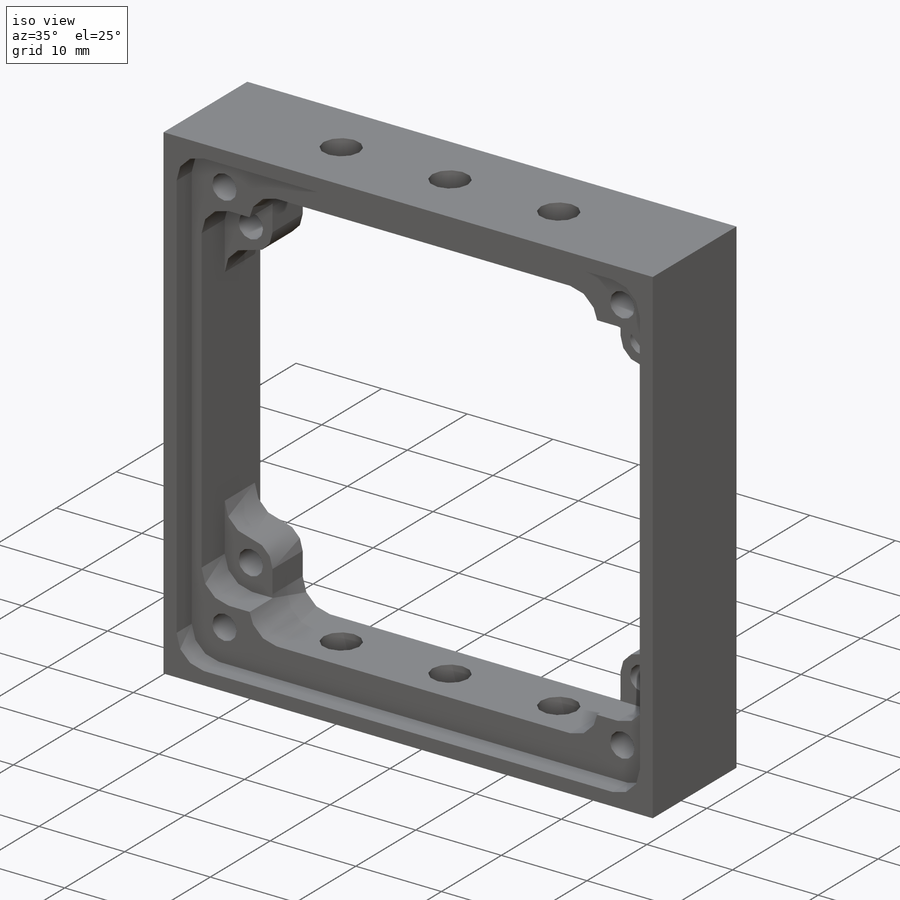
[diagram: iso view]
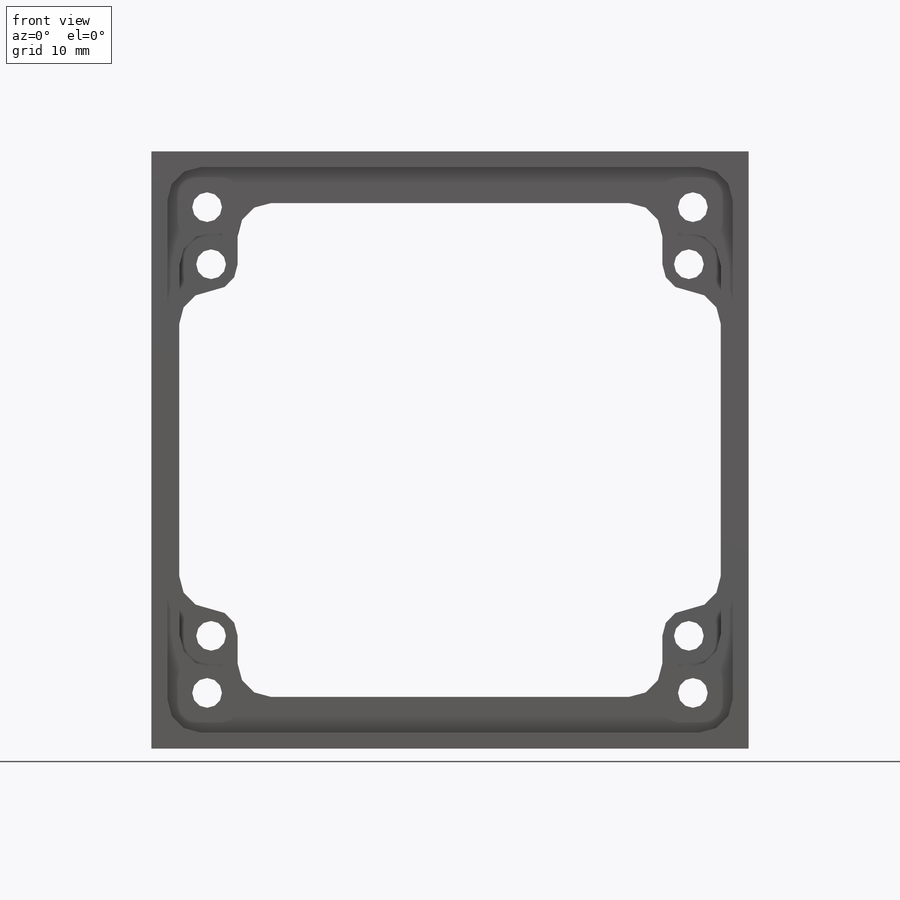
[diagram: front view]
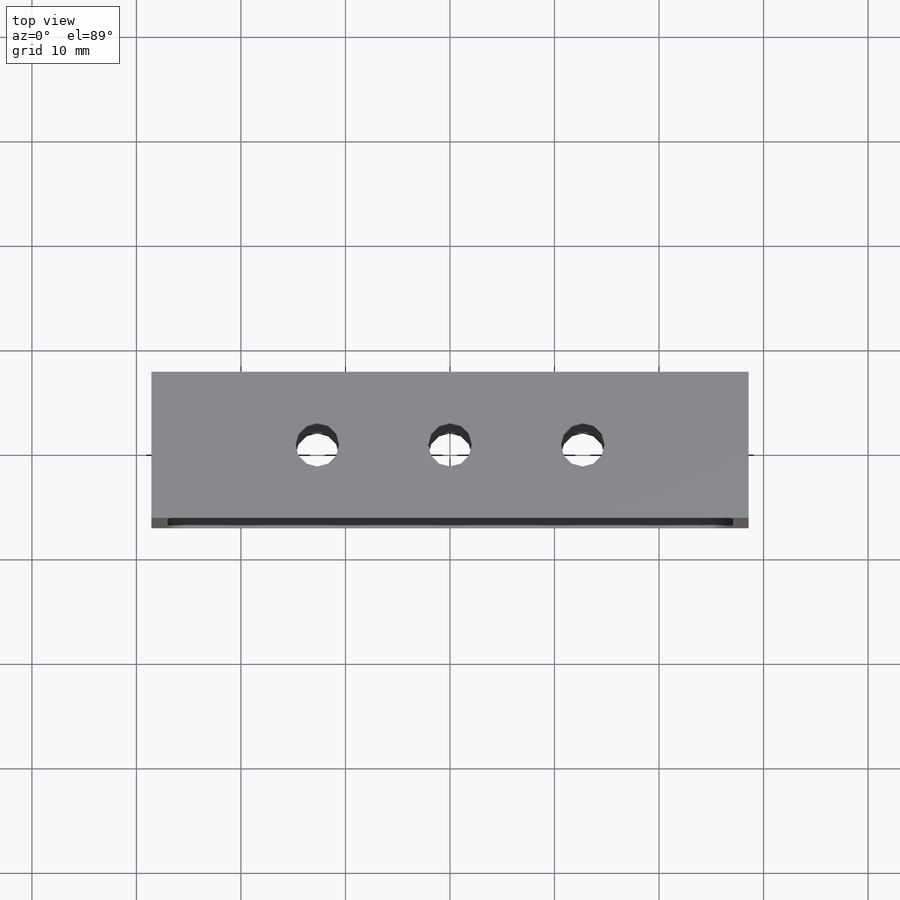
[diagram: top view]
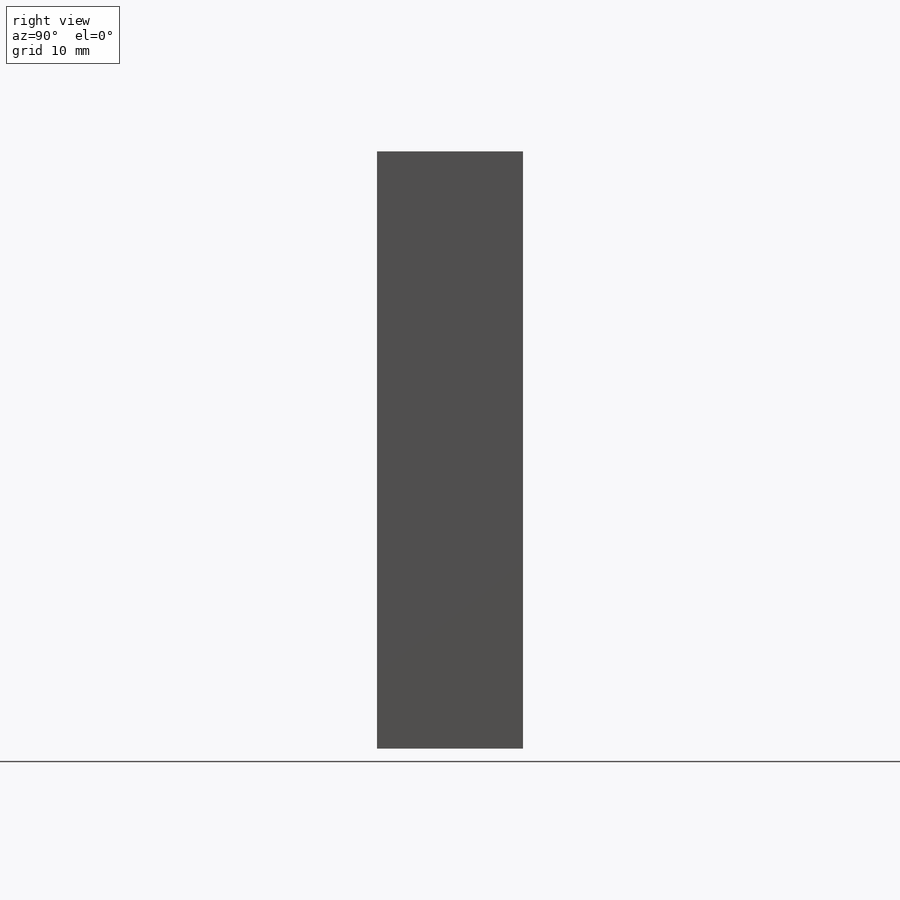
[diagram: right view]
SOLIDWORKS PART (.sldprt)
format: sldprt  version: not decoded by parser v0  size: 633,344 bytes
history: native  units: mm
features: sketch x9, hole x3, cut_extrude x2, material x1, extrude x1, mirror x1 + 1 further entry (+11 scaffold rows collapsed)
feature tree (29):
  scaffold x11  (default folders/planes/origin — collapsed)
  material  "6061-T6 Al"
  "Origin"  ID=392984584
  sketch  "Sketch1 w/mock PCB"  dims[c1.D5=3.048mm c1.D6=3.048mm c1.D7=~1.947748mm c2.D6=3.048mm c2.D7=~2.392707mm c2.D5=2.8448mm c3.D6=3.048mm c3.D7=3.048mm c3.D8=1.5875mm c3.D9=4.7625mm c3.D10=2.54mm c3.D12=3.048mm c3.D13=6.604mm c3.D16=1.5875mm c3.D19=~2.38125mm c4.D9=3.175mm c4.D19=3.048mm c4.D22=2.54mm c4.D23=5.4102mm c4.D14=2.54mm c4.D1=~102.901114mm c4.D2=~79.998856mm c5.D1=46.228mm c5.D2=57.15mm c5.D3=~35.706034mm c5.D4=~31.234425mm c6.D3=40.64mm c6.D4=40.64mm c6.D6=3.81mm c6.D7=6.096mm c7.D6=3.81mm c7.D7=3.048mm c7.D5=3.81mm c8.D7=~49.253342mm c8.D8=~37.691316mm c9.D7=50.8mm c9.D8=40.64mm c9.D6=33.02mm c10.D7=35.56mm c10.D1=50.8mm c10.D4=45.72mm c10.D8=~4.213439mm c11.D8=45.0deg c11.D10=0.254mm c11.D12=6.096mm c11.D14=6.223mm c11.D15=1.778mm c11.D16=1.524mm c11.D17=1.524mm c11.D18=57.15mm c11.D19=~0.697452mm c11.D20=~41.386999mm c12.D19=~0.697452mm c12.D8=~34.56784mm c13.D8=45.0deg c13.D20=~36.155415mm c13.D21=2.159mm c13.D22=~4.15925mm c14.D21=2.159mm c14.D15=1.143mm c14.D12=3.556mm c14.D19=3.556mm c14.D20=46.482mm c15.D21=46.482mm c15.D12=3.81mm c15.D19=3.81mm c15.D24=0.381mm c15.D6=0.508mm c15.D11=1.143mm c15.D14=~3.950315mm c15.D8=135.0deg c15.D17=~3.592102mm c16.D8=~5.586589mm c17.D8=45.0deg c17.D14=~30.176994mm c18.D14=135.0deg c18.D17=~5.930302mm c18.D8=135.0deg c19.D14=~3.592102mm c19.D8=~2.435377mm c20.D8=45.0deg c20.D14=0.508mm c20.D6=0.508mm c20.D17=47.244mm c21.D6=0.508mm c21.D11=1.778mm c21.D14=5.334mm c21.D15=1.27mm c21.D22=0.254mm]
  extrude  "Boss-Extrude1"  Depth=13.97mm
  sketch  "Sketch2"  dims[c1.D1=~42.550484mm c1.D2=~41.145434mm c2.D1=~26.082254mm c2.D2=2.032mm c2.D3=0.762mm c3.D1=43.942mm c3.D4=54.102mm c4.D1=~55.182801deg]
  cut_extrude  "Cut-Extrude1"  Depth=2.54mm
  mirror  "Mirror1"
  sketch  "Sketch4"  dims[c1.D1=3.175mm c1.D2=~3.627494mm c2.D1=3.429mm c2.D2=1.5875mm c3.D1=~9.951424mm c3.D2=~5.868251mm c4.D1=~43.18833mm c4.D2=~33.357212mm c5.D1=~1.510764mm c6.D1=~61.232383deg c6.D2=~4.756874mm c6.D3=~20.941448mm c7.D2=~33.164951mm c7.D1=31.75mm c8.D2=41.91mm c8.D3=1.27mm c9.D2=~8.979858mm c9.D3=5.08mm c10.D2=~31.675727mm c10.D3=5.08mm c11.D2=90.0deg]
  cut_extrude  "Cut-Extrude3"  Depth=5.0292mm
  hole  "#4-40 Tapped Hole1"  Diameter=2.8448mm Depth=5.0292mm
  sketch  "Sketch12"  dims[D1=4.7625mm]
  sketch  "Sketch11"  dims[hole-wizard template sketch: 46 standard entries collapsed; hole parameters kept: c15.Thread Major Dia.=2.8448mm c15.Thru Tap Drill Depth=5.0292mm c15.Near C'Sink Dia.=2.8702mm c15.D4=~3.666174mm c15.Near C'Sink Angle=90.0deg c15.Far C'Sink Dia.=2.8702mm c15.D6=~9.919017mm c15.Far C'Sink Angle=90.0deg]
  hole  "#4-40 Tapped Hole2"  Diameter=2.8448mm Depth=8.89mm
  sketch  "Sketch23"
  sketch  "Sketch22"  dims[hole-wizard template sketch: 46 standard entries collapsed; hole parameters kept: c15.Thread Major Dia.=2.8448mm c15.Thru Tap Drill Depth=8.89mm c15.Near C'Sink Dia.=2.8702mm c15.D4=~3.666174mm c15.Near C'Sink Angle=90.0deg c15.Far C'Sink Dia.=2.8702mm c15.D6=~9.919017mm c15.Far C'Sink Angle=90.0deg]
  hole  "#8-32 Tapped Hole1"  Diameter=4.1656mm Depth=4.953mm
  sketch  "3DSketch1"  dims[c1.D1=~20.962536mm c1.D4=25.4mm c1.D2=25.4mm c1.D3=~2.723606mm c2.D1=2.638mm c2.D3=2.638mm c3.D1=6.985mm]
  sketch  "Sketch15"  dims[hole-wizard template sketch: 54 standard entries collapsed; hole parameters kept: c17.Thread Major Dia.=4.1656mm c17.Thru Tap Drill Depth=4.953mm c17.Near C'Sink Dia.=4.191mm c17.D4=~3.666174mm c17.Near C'Sink Angle=90.0deg]
decode coverage: 14 of 16 modeling features carry decoded parameters; 1 rows unclassified (native names shown)
note: ~ marks probable driven/reference dimensions
note: suppression state not decoded; provenance and decode notes live in map.json
